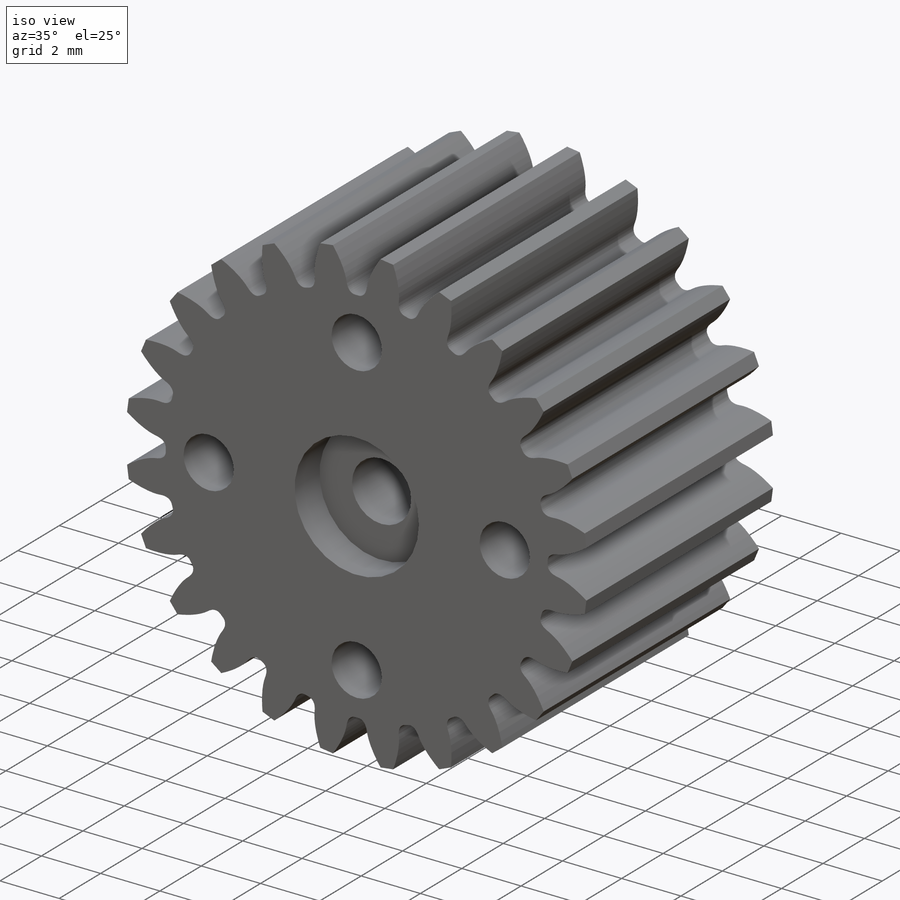
[diagram: iso view]
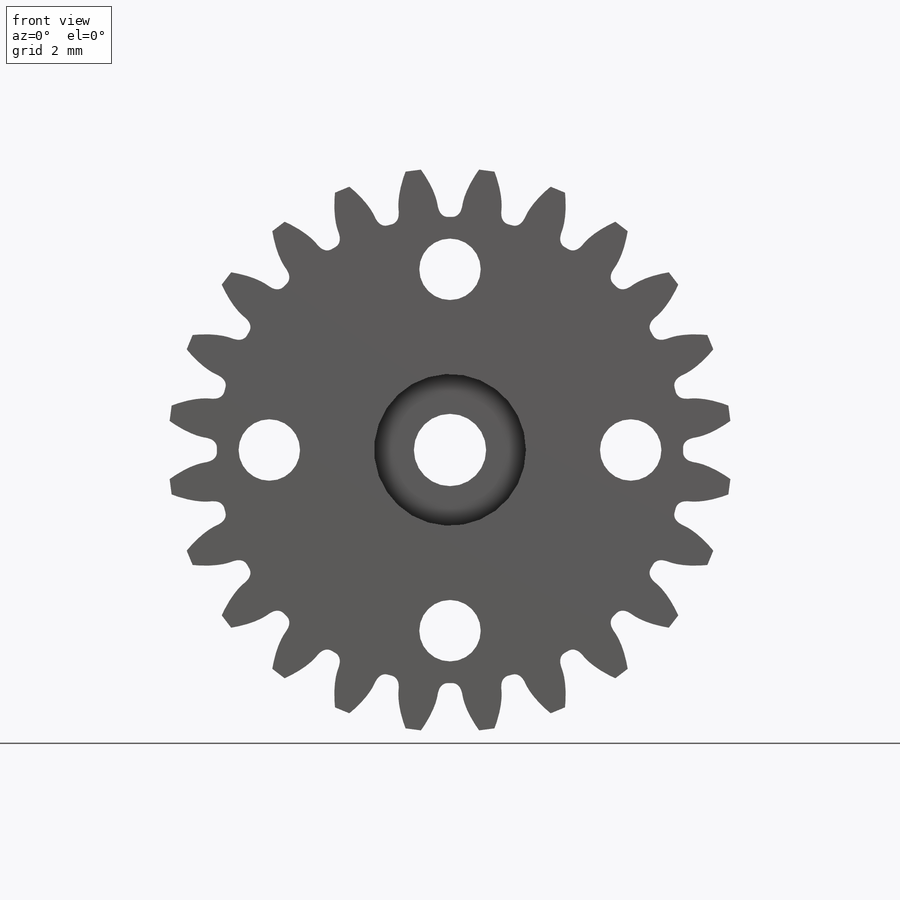
[diagram: front view]
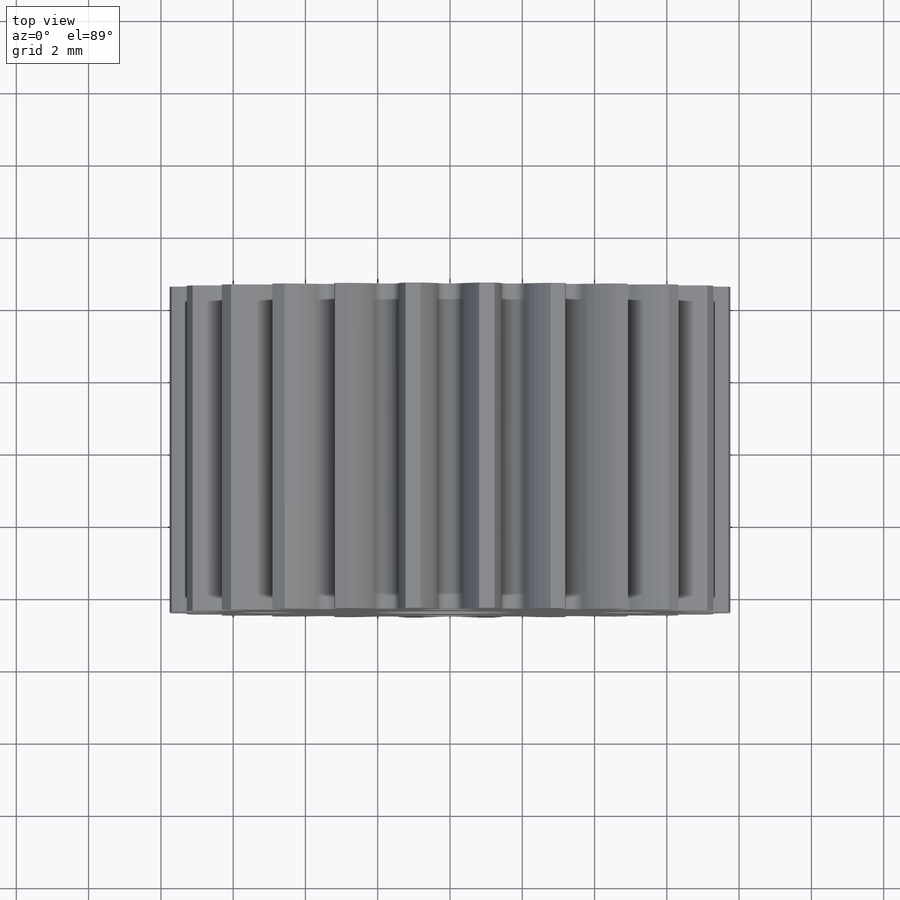
[diagram: top view]
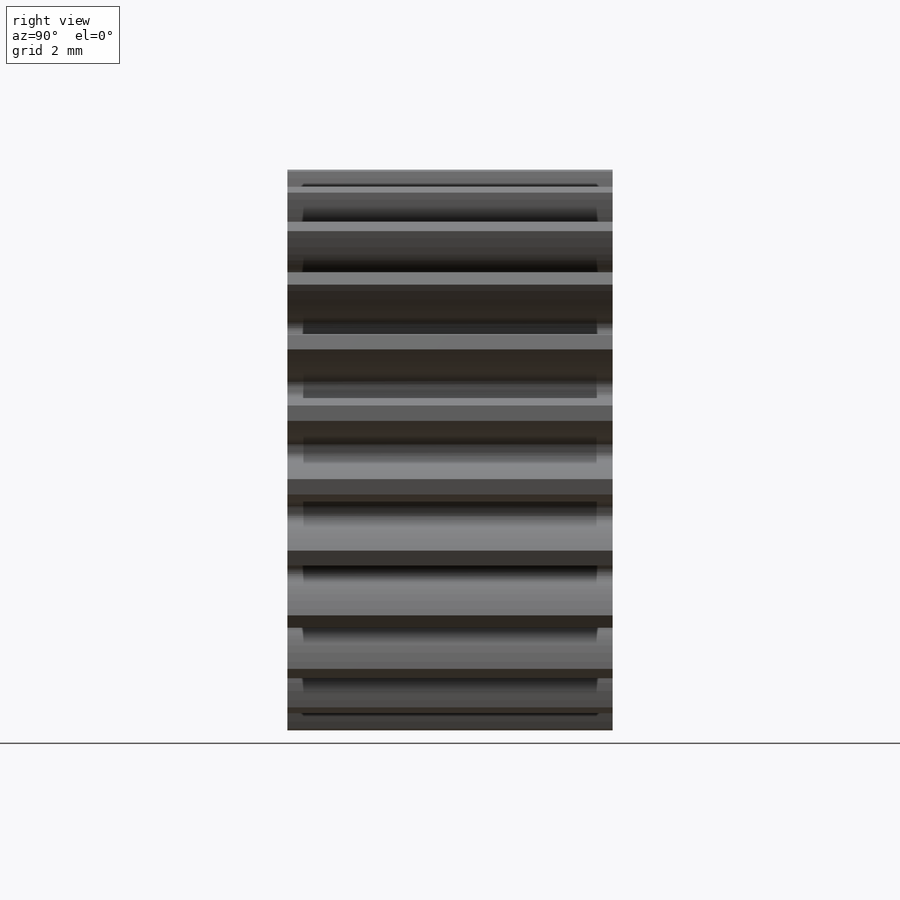
[diagram: right view]
SOLIDWORKS PART (.sldprt)
format: sldprt  version: not decoded by parser v0  size: 991,744 bytes
history: native  units: mm
features: sketch x6, plane x3, cut_extrude x3, material x1, extrude x1, pattern_circular x1, hole x1 (+10 scaffold rows collapsed)
feature tree (26):
  scaffold x10  (default folders/planes/origin — collapsed)
  material  "材质 <未指定>"
  plane  "前视基准面"
  plane  "上视基准面"
  plane  "右视基准面"
  sketch  "大齿-基础草图        "  dims[D1=~15.600012mm]
  extrude  "0.6 模数    , 14.4000mm P.D."  Depth=9mm
  sketch  "齿形草图;   侧隙:             0.0000mm"
  cut_extrude  "齿形除料     , 大节距 渐开线 20 度                "  Depth=10mm
  pattern_circular  "齿形图样,          24 / 24"  Count=24 Angle=15deg
  sketch  "Sketch3"  dims[D1=1.7mm D3=1.8mm D2=5.0mm D4=4.0]
  cut_extrude  "Extrude3"  [1 undecoded]
  hole  "CSK for M2 Flat Head Machine Screw1"  [1 undecoded]
  sketch  "3DSketch1"
  sketch  "Sketch4"  dims[hole-wizard template sketch: 54 standard entries collapsed; hole parameters kept: c17.通孔孔直径=2.0mm c17.通孔孔深度=9.0mm c17.近端锥形沉头孔直径=4.2mm c17.D4=~3.666174mm c17.近端锥形沉头孔角度=90.0deg]
  sketch  "草图1"
  cut_extrude  "切除-拉伸1"  Depth=1.2mm
decode coverage: 7 of 12 modeling features carry decoded parameters
note: ~ marks probable driven/reference dimensions
note: 2 parameter values undecoded
note: suppression state not decoded; provenance and decode notes live in map.json
